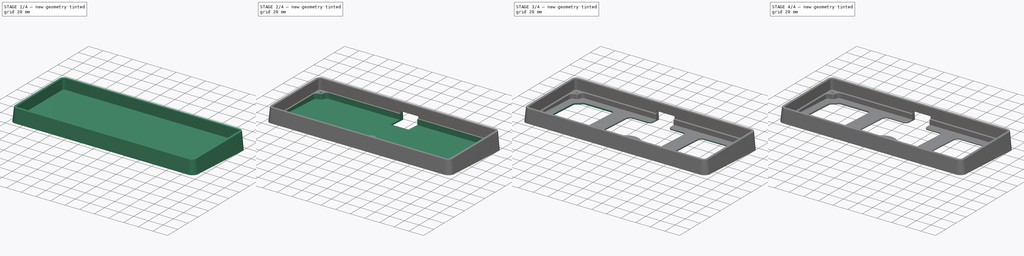
[diagram: build sequence overview — one tinted view per stage of 4, left to right]
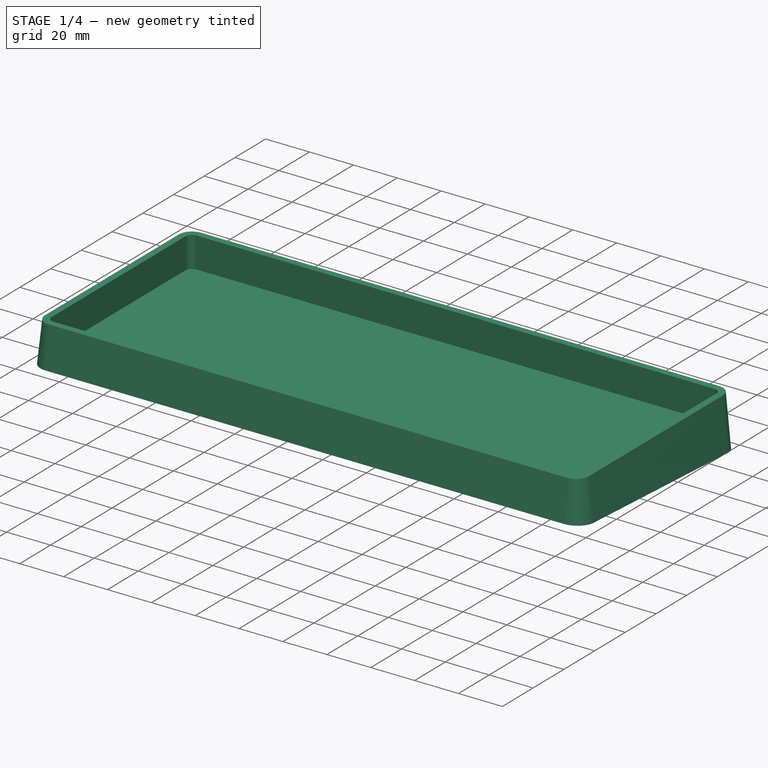
[diagram: stage 1 of 4 — iso view after this stage's code; geometry added in this stage tinted green]
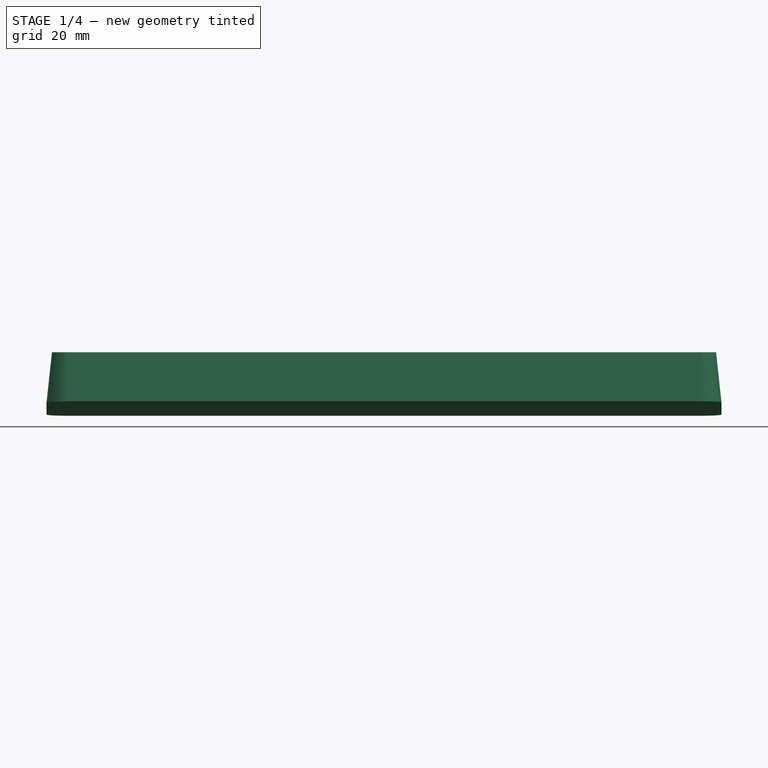
[diagram: stage 1 of 4 — front view after this stage's code; geometry added in this stage tinted green]
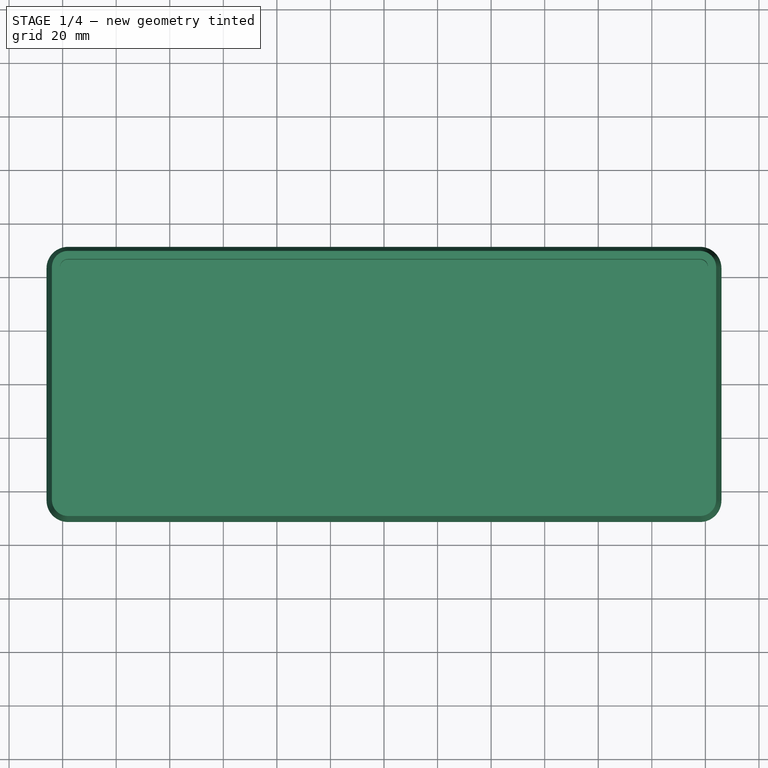
[diagram: stage 1 of 4 — top view after this stage's code; geometry added in this stage tinted green]
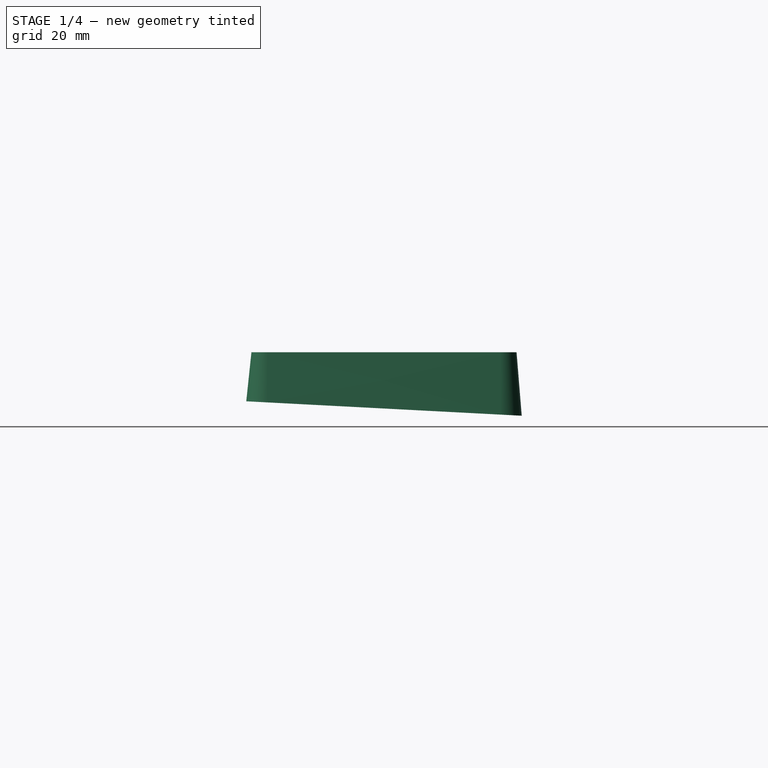
[diagram: stage 1 of 4 — right view after this stage's code; geometry added in this stage tinted green]
FCSTD DOCUMENT  (FreeCAD 0.20R)
Label: case
License: All rights reserved
LicenseURL: http://en.wikipedia.org/wiki/All_rights_reserved
objects: Sketcher::SketchObject×7, PartDesign::Pocket×4, PartDesign::Fillet×3, PartDesign::AdditiveLoft×1, PartDesign::Hole×1, PartDesign::Chamfer×1, PartDesign::Body×1
note: 28 computed .brp shape members not serialized (recipe doc carries the construction recipe); baked Part::Feature solids carry a one-line shape summary decoded from their .brp

FEATURE [Sketcher::SketchObject] Sketch
  AttachmentOffset = pos=(0,0,0) rot=(1,0,0;-0.05236rad)
  FullyConstrained = false
  MapMode = 5
  Placement = pos=(0,0,0) rot=(1,0,0;6.23083rad)
  Support = -> [XY_Plane]
  sketch-geometry (8):
    g0: LineSegment StartX=-126 StartY=43.5 StartZ=0 EndX=-126 EndY=-43.5 EndZ=0
    g1: ArcOfCircle CenterX=-118 CenterY=-43.5 CenterZ=0 NormalX=0 NormalY=0 NormalZ=1 AngleXU=0 Radius=8 StartAngle=3.14159 EndAngle=4.71239
    g2: LineSegment StartX=118 StartY=-51.5 StartZ=0 EndX=-118 EndY=-51.5 EndZ=0
    g3: ArcOfCircle CenterX=118 CenterY=-43.5 CenterZ=0 NormalX=0 NormalY=0 NormalZ=1 AngleXU=0 Radius=8 StartAngle=4.71239 EndAngle=6.28319
    g4: LineSegment StartX=126 StartY=43.5 StartZ=0 EndX=126 EndY=-43.5 EndZ=0
    g5: ArcOfCircle CenterX=118 CenterY=43.5 CenterZ=0 NormalX=0 NormalY=0 NormalZ=1 AngleXU=0 Radius=8 StartAngle=0 EndAngle=1.5708
    g6: LineSegment StartX=118 StartY=51.5 StartZ=0 EndX=-118 EndY=51.5 EndZ=0
    g7: ArcOfCircle CenterX=-118 CenterY=43.5 CenterZ=0 NormalX=0 NormalY=0 NormalZ=1 AngleXU=0 Radius=8 StartAngle=1.5708 EndAngle=3.14159
  constraints (8):
    c: Coincident(g0,g1)
    c: Coincident(g0,g7)
    c: Coincident(g1,g2)
    c: Coincident(g6,g7)
    c: Coincident(g2,g3)
    c: Coincident(g5,g6)
    c: Coincident(g3,g4)
    c: Coincident(g4,g5)
FEATURE [Sketcher::SketchObject] Sketch001
  AttachmentOffset = pos=(0,0,21) rot=(1,0,0;0rad)
  FullyConstrained = false
  MapMode = 5
  Placement = pos=(0,0,21) rot=(0,0,1;0rad)
  Support = -> [XY_Plane]
  sketch-geometry (8):
    g0: LineSegment StartX=118 StartY=49.5 StartZ=0 EndX=-118 EndY=49.5 EndZ=0
    g1: ArcOfCircle CenterX=-118 CenterY=43.5 CenterZ=0 NormalX=0 NormalY=0 NormalZ=1 AngleXU=0 Radius=6 StartAngle=1.5708 EndAngle=3.14159
    g2: LineSegment StartX=-124 StartY=43.5 StartZ=0 EndX=-124 EndY=-43.5 EndZ=0
    g3: ArcOfCircle CenterX=118 CenterY=43.5 CenterZ=0 NormalX=0 NormalY=0 NormalZ=1 AngleXU=0 Radius=6 StartAngle=0 EndAngle=1.5708
    g4: LineSegment StartX=124 StartY=43.5 StartZ=0 EndX=124 EndY=-43.5 EndZ=0
    g5: LineSegment StartX=118 StartY=-49.5 StartZ=0 EndX=-118 EndY=-49.5 EndZ=0
    g6: ArcOfCircle CenterX=118 CenterY=-43.5 CenterZ=0 NormalX=0 NormalY=0 NormalZ=1 AngleXU=0 Radius=6 StartAngle=4.71239 EndAngle=6.28319
    g7: ArcOfCircle CenterX=-118 CenterY=-43.5 CenterZ=0 NormalX=0 NormalY=0 NormalZ=1 AngleXU=0 Radius=6 StartAngle=3.14159 EndAngle=4.71239
  constraints (8):
    c: Coincident(g2,g7)
    c: Coincident(g1,g2)
    c: Coincident(g5,g7)
    c: Coincident(g0,g1)
    c: Coincident(g5,g6)
    c: Coincident(g0,g3)
    c: Coincident(g4,g6)
    c: Coincident(g3,g4)
FEATURE [PartDesign::AdditiveLoft] AdditiveLoft
  Closed = true
  Profile = -> Sketch
  Ruled = true
  Sections = -> [Sketch001]
FEATURE [Sketcher::SketchObject] Sketch002
  FullyConstrained = false
  MapMode = 5
  Placement = pos=(0,0,21) rot=(0,0,1;0rad)
  Support = -> [AdditiveLoft]
  sketch-geometry (8):
    g0: LineSegment StartX=118 StartY=46.5 StartZ=0 EndX=-118 EndY=46.5 EndZ=0
    g1: ArcOfCircle CenterX=118 CenterY=43.5 CenterZ=0 NormalX=0 NormalY=0 NormalZ=1 AngleXU=0 Radius=3 StartAngle=0 EndAngle=1.5708
    g2: LineSegment StartX=121 StartY=43.5 StartZ=0 EndX=121 EndY=-43.5 EndZ=0
    g3: ArcOfCircle CenterX=118 CenterY=-43.5 CenterZ=0 NormalX=0 NormalY=0 NormalZ=1 AngleXU=0 Radius=3 StartAngle=4.71239 EndAngle=6.28319
    g4: LineSegment StartX=118 StartY=-46.5 StartZ=0 EndX=-118 EndY=-46.5 EndZ=0
    g5: ArcOfCircle CenterX=-118 CenterY=-43.5 CenterZ=0 NormalX=0 NormalY=0 NormalZ=1 AngleXU=0 Radius=3 StartAngle=3.14159 EndAngle=4.71239
    g6: LineSegment StartX=-121 StartY=43.5 StartZ=0 EndX=-121 EndY=-43.5 EndZ=0
    g7: ArcOfCircle CenterX=-118 CenterY=43.5 CenterZ=0 NormalX=0 NormalY=0 NormalZ=1 AngleXU=0 Radius=3 StartAngle=1.5708 EndAngle=3.14159
  constraints (8):
    c: Coincident(g5,g6)
    c: Coincident(g6,g7)
    c: Coincident(g4,g5)
    c: Coincident(g0,g7)
    c: Coincident(g3,g4)
    c: Coincident(g0,g1)
    c: Coincident(g2,g3)
    c: Coincident(g1,g2)
FEATURE [PartDesign::Pocket] Pocket
  BaseFeature = -> AdditiveLoft
  Direction = (0,0,-1)
  Length = 14
  Length2 = 5
  Profile = -> Sketch002
  ReferenceAxis = -> Sketch002 [N_Axis]
  Type = 0
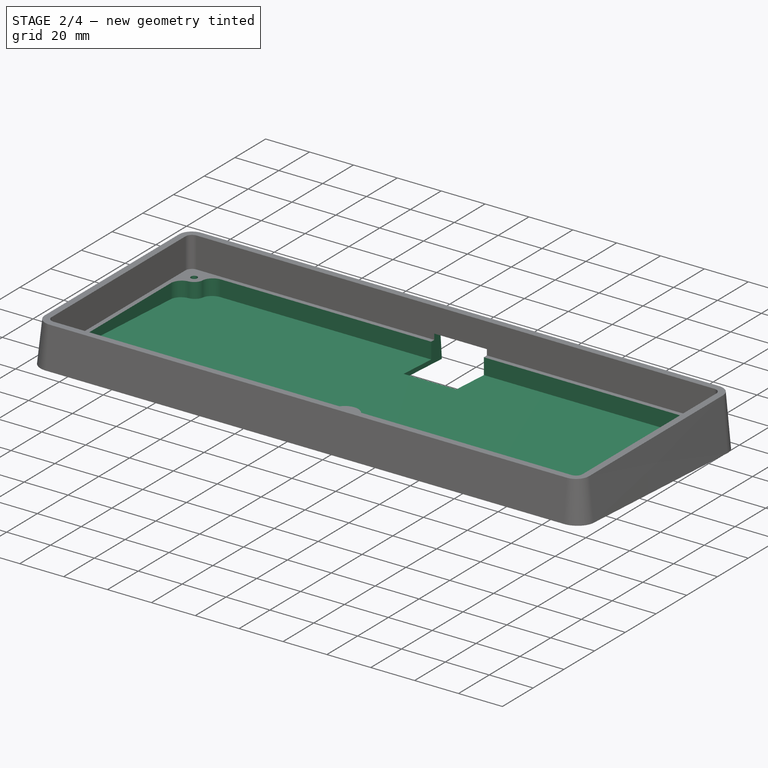
[diagram: stage 2 of 4 — iso view after this stage's code; geometry added in this stage tinted green]
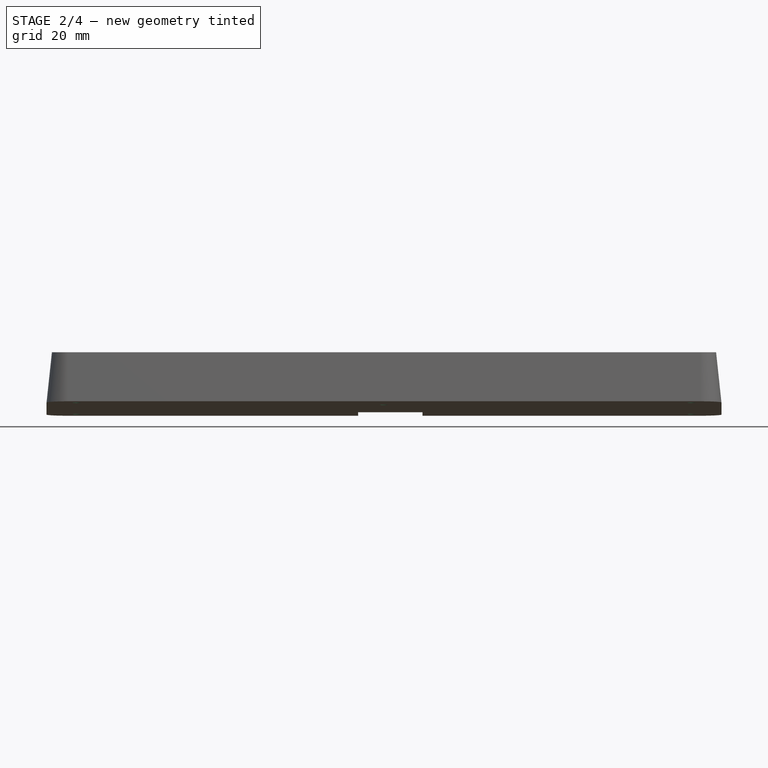
[diagram: stage 2 of 4 — front view after this stage's code; geometry added in this stage tinted green]
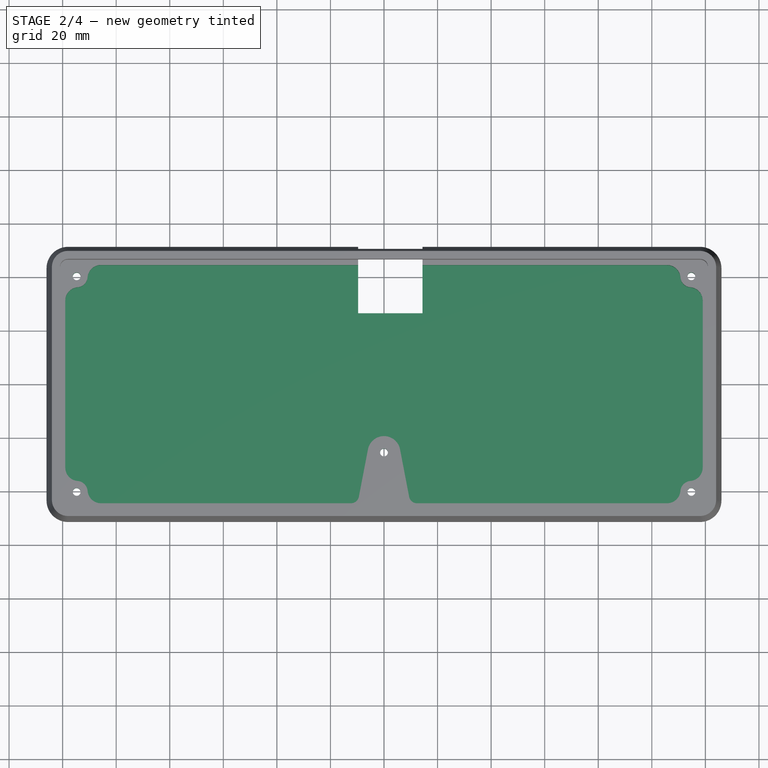
[diagram: stage 2 of 4 — top view after this stage's code; geometry added in this stage tinted green]
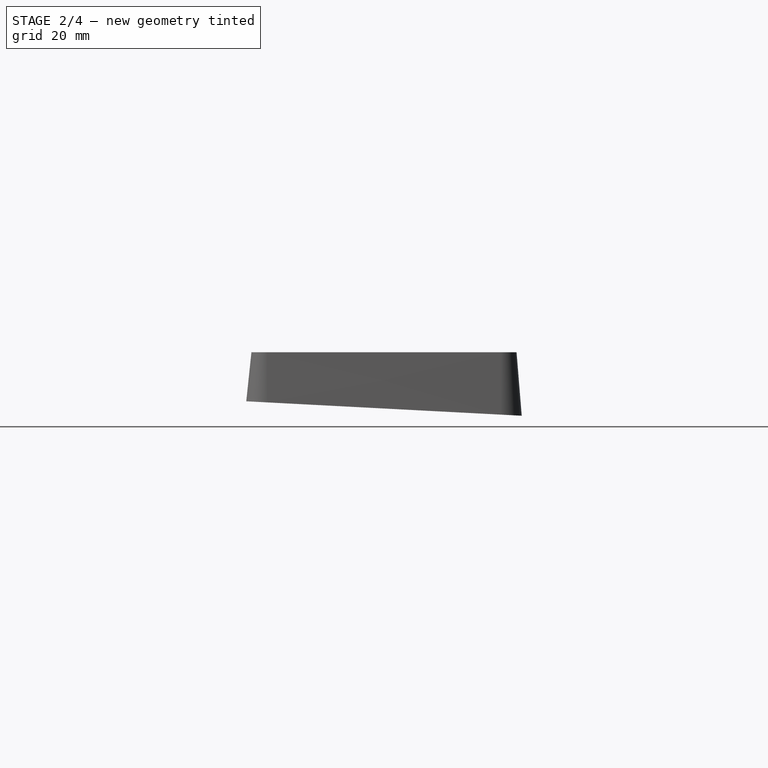
[diagram: stage 2 of 4 — right view after this stage's code; geometry added in this stage tinted green]
FEATURE [Sketcher::SketchObject] Sketch003
  FullyConstrained = false
  MapMode = 5
  Placement = pos=(0,0,7) rot=(0,0,1;0rad)
  Support = -> [Pocket]
  sketch-geometry (22):
    g0: LineSegment StartX=-5.99058 StartY=-24.3653 StartZ=0 EndX=-9.38905 EndY=-42.0657 EndZ=0
    g1: ArcOfCircle CenterX=-12.3352 CenterY=-41.5 CenterZ=0 NormalX=0 NormalY=0 NormalZ=1 AngleXU=0 Radius=3 StartAngle=4.71239 EndAngle=6.09349
    g2: LineSegment StartX=5.99058 StartY=-24.3653 StartZ=0 EndX=9.38905 EndY=-42.0657 EndZ=0
    g3: ArcOfCircle CenterX=12.3352 CenterY=-41.5 CenterZ=0 NormalX=0 NormalY=0 NormalZ=1 AngleXU=0 Radius=3 StartAngle=3.33128 EndAngle=4.71239
    g4: ArcOfCircle CenterX=0 CenterY=-25.5155 CenterZ=0 NormalX=0 NormalY=0 NormalZ=1 AngleXU=0 Radius=6.1 StartAngle=0.189691 EndAngle=2.9519
    g5: ArcOfCircle CenterX=105.689 CenterY=39.5 CenterZ=0 NormalX=0 NormalY=0 NormalZ=1 AngleXU=0 Radius=5 StartAngle=0.0833227 EndAngle=1.5708
    g6: ArcOfCircle CenterX=-105.689 CenterY=39.5 CenterZ=0 NormalX=0 NormalY=0 NormalZ=1 AngleXU=0 Radius=5 StartAngle=1.5708 EndAngle=3.05827
    g7: LineSegment StartX=105.689 StartY=44.5 StartZ=0 EndX=-105.689 EndY=44.5 EndZ=0
    g8: ArcOfCircle CenterX=114 CenterY=31.1889 CenterZ=0 NormalX=0 NormalY=0 NormalZ=1 AngleXU=0 Radius=5 StartAngle=0 EndAngle=1.48747
    g9: ArcOfCircle CenterX=114 CenterY=-31.1889 CenterZ=0 NormalX=0 NormalY=0 NormalZ=1 AngleXU=0 Radius=5 StartAngle=4.79571 EndAngle=6.28319
    g10: ArcOfCircle CenterX=105.689 CenterY=-39.5 CenterZ=0 NormalX=0 NormalY=0 NormalZ=1 AngleXU=0 Radius=5 StartAngle=4.71239 EndAngle=6.19986
    g11: ArcOfCircle CenterX=-105.689 CenterY=-39.5 CenterZ=0 NormalX=0 NormalY=0 NormalZ=1 AngleXU=0 Radius=5 StartAngle=3.22492 EndAngle=4.71239
    g12: ArcOfCircle CenterX=-114 CenterY=31.1889 CenterZ=0 NormalX=0 NormalY=0 NormalZ=1 AngleXU=0 Radius=5 StartAngle=1.65412 EndAngle=3.14159
    g13: ArcOfCircle CenterX=-114 CenterY=-31.1889 CenterZ=0 NormalX=0 NormalY=0 NormalZ=1 AngleXU=0 Radius=5 StartAngle=3.14159 EndAngle=4.62907
    g14: LineSegment StartX=-105.689 StartY=-44.5 StartZ=0 EndX=-12.3352 EndY=-44.5 EndZ=0
    g15: LineSegment StartX=12.3352 StartY=-44.5 StartZ=0 EndX=105.689 EndY=-44.5 EndZ=0
    g16: ArcOfCircle CenterX=114.757 CenterY=-40.2574 CenterZ=0 NormalX=0 NormalY=0 NormalZ=1 AngleXU=0 Radius=4.1 StartAngle=1.65412 EndAngle=3.05827
    g17: ArcOfCircle CenterX=114.757 CenterY=40.2574 CenterZ=0 NormalX=0 NormalY=0 NormalZ=1 AngleXU=0 Radius=4.1 StartAngle=3.22492 EndAngle=4.62907
    g18: ArcOfCircle CenterX=-114.757 CenterY=40.2574 CenterZ=0 NormalX=0 NormalY=0 NormalZ=1 AngleXU=0 Radius=4.1 StartAngle=4.79571 EndAngle=6.19986
    g19: ArcOfCircle CenterX=-114.757 CenterY=-40.2574 CenterZ=0 NormalX=0 NormalY=0 NormalZ=1 AngleXU=0 Radius=4.1 StartAngle=0.0833227 EndAngle=1.48747
    g20: LineSegment StartX=-119 StartY=31.1889 StartZ=0 EndX=-119 EndY=-31.1889 EndZ=0
    g21: LineSegment StartX=119 StartY=31.1889 StartZ=0 EndX=119 EndY=-31.1889 EndZ=0
  constraints (22):
    c: Coincident(g13,g20)
    c: Coincident(g12,g20)
    c: Coincident(g13,g19)
    c: Coincident(g12,g18)
    c: Coincident(g11,g19)
    c: Coincident(g6,g18)
    c: Coincident(g11,g14)
    c: Coincident(g6,g7)
    c: Coincident(g1,g14)
    c: Coincident(g0,g1)
    c: Coincident(g0,g4)
    c: Coincident(g2,g4)
    c: Coincident(g2,g3)
    c: Coincident(g3,g15)
    c: Coincident(g10,g15)
    c: Coincident(g5,g7)
    c: Coincident(g10,g16)
    c: Coincident(g5,g17)
    c: Coincident(g9,g16)
    c: Coincident(g8,g17)
    c: Coincident(g9,g21)
    c: Coincident(g8,g21)
FEATURE [PartDesign::Pocket] Pocket001
  BaseFeature = -> Pocket
  Direction = (0,0,-1)
  Length = 0
  Length2 = 5
  Offset = -2
  Profile = -> Sketch003
  ReferenceAxis = -> Sketch003 [N_Axis]
  Type = 3
  UpToFace = -> Pocket [Face1]
FEATURE [Sketcher::SketchObject] Sketch004
  FullyConstrained = false
  MapMode = 5
  Placement = pos=(0,0,7) rot=(0,0,1;0rad)
  Support = -> [Pocket]
  sketch-geometry (5):
    g0: Circle CenterX=0 CenterY=-25.5155 CenterZ=0 NormalX=0 NormalY=0 NormalZ=-1 AngleXU=0 Radius=1.1
    g1: Circle CenterX=114.757 CenterY=40.2574 CenterZ=0 NormalX=0 NormalY=0 NormalZ=-1 AngleXU=0 Radius=1.1
    g2: Circle CenterX=114.757 CenterY=-40.2574 CenterZ=0 NormalX=0 NormalY=0 NormalZ=-1 AngleXU=0 Radius=1.1
    g3: Circle CenterX=-114.757 CenterY=40.2574 CenterZ=0 NormalX=0 NormalY=0 NormalZ=-1 AngleXU=0 Radius=1.1
    g4: Circle CenterX=-114.757 CenterY=-40.2574 CenterZ=0 NormalX=0 NormalY=0 NormalZ=-1 AngleXU=0 Radius=1.1
FEATURE [PartDesign::Hole] Hole
  BaseFeature = -> Pocket001
  CustomThreadClearance = 0
  Depth = 25
  DepthType = 0
  Diameter = 2.9
  DrillForDepth = false
  DrillPoint = 1
  DrillPointAngle = 118
  HoleCutCountersinkAngle = 90
  HoleCutCustomValues = false
  HoleCutDepth = 0
  HoleCutDiameter = 6.1
  HoleCutType = 0
  ModelThread = false
  Profile = -> Sketch004
  Tapered = false
  TaperedAngle = 90
  ThreadClass = 0
  ThreadDepth = 25
  ThreadDepthType = 0
  ThreadDirection = 0
  ThreadFit = 0
  ThreadSize = 8
  ThreadType = 1
  Threaded = false
  UseCustomThreadClearance = false
FEATURE [Sketcher::SketchObject] Sketch005
  FullyConstrained = false
  MapMode = 5
  Placement = pos=(0,0,0) rot=(1,0,0;3.08923rad)
  Support = -> [Hole]
  sketch-geometry (4):
    g0: LineSegment StartX=14.3573 StartY=-57.5 StartZ=0 EndX=14.3573 EndY=-26.5 EndZ=0
    g1: LineSegment StartX=-9.6427 StartY=-26.5 StartZ=0 EndX=14.3573 EndY=-26.5 EndZ=0
    g2: LineSegment StartX=-9.6427 StartY=-57.5 StartZ=0 EndX=-9.6427 EndY=-26.5 EndZ=0
    g3: LineSegment StartX=14.3573 StartY=-57.5 StartZ=0 EndX=-9.6427 EndY=-57.5 EndZ=0
FEATURE [PartDesign::Pocket] Pocket002
  BaseFeature = -> Hole
  Direction = (0,0.052336,0.99863)
  Length = 12
  Length2 = 5
  Profile = -> Sketch005
  ReferenceAxis = -> Sketch005 [N_Axis]
  Type = 0
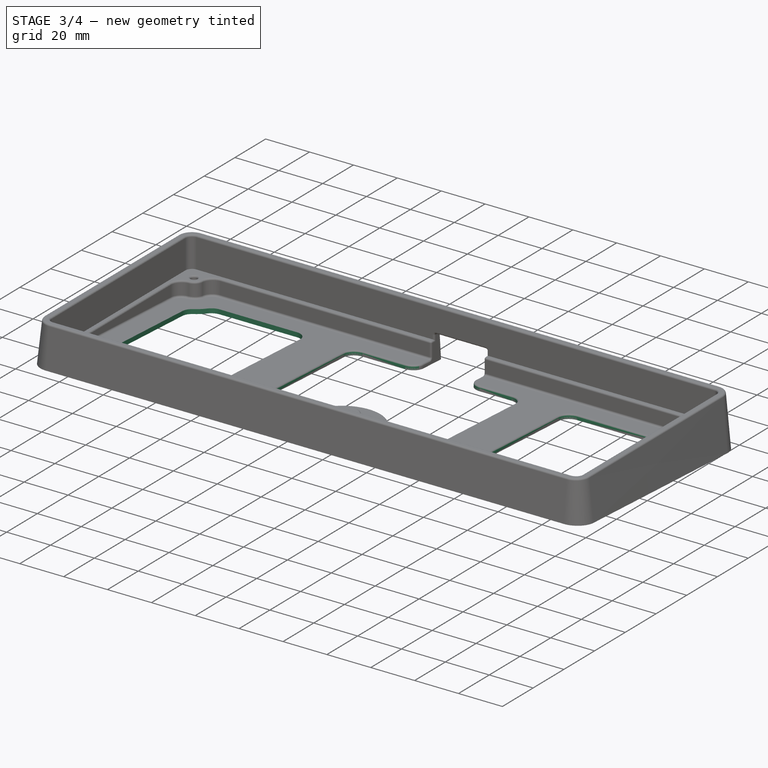
[diagram: stage 3 of 4 — iso view after this stage's code; geometry added in this stage tinted green]
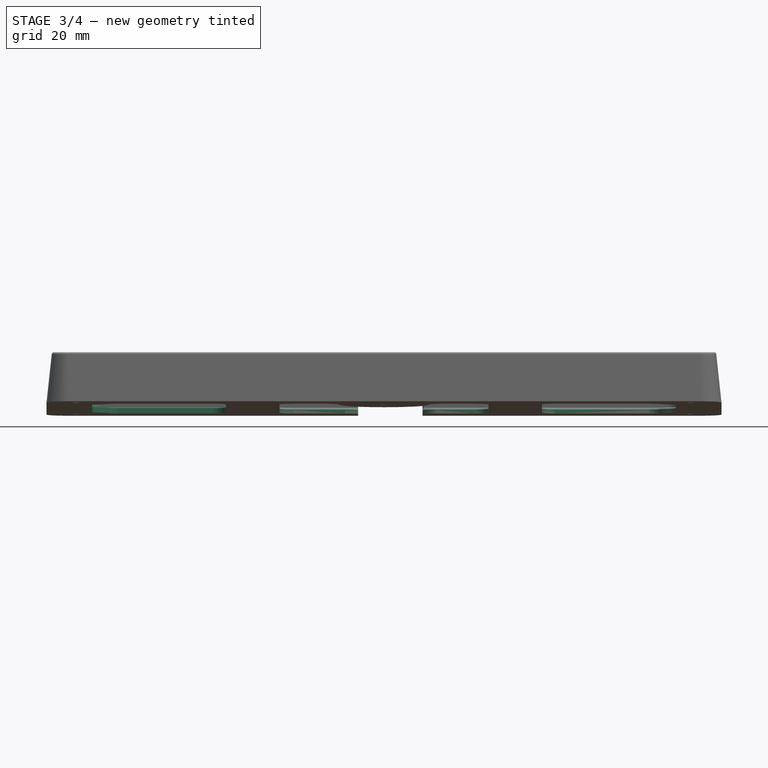
[diagram: stage 3 of 4 — front view after this stage's code; geometry added in this stage tinted green]
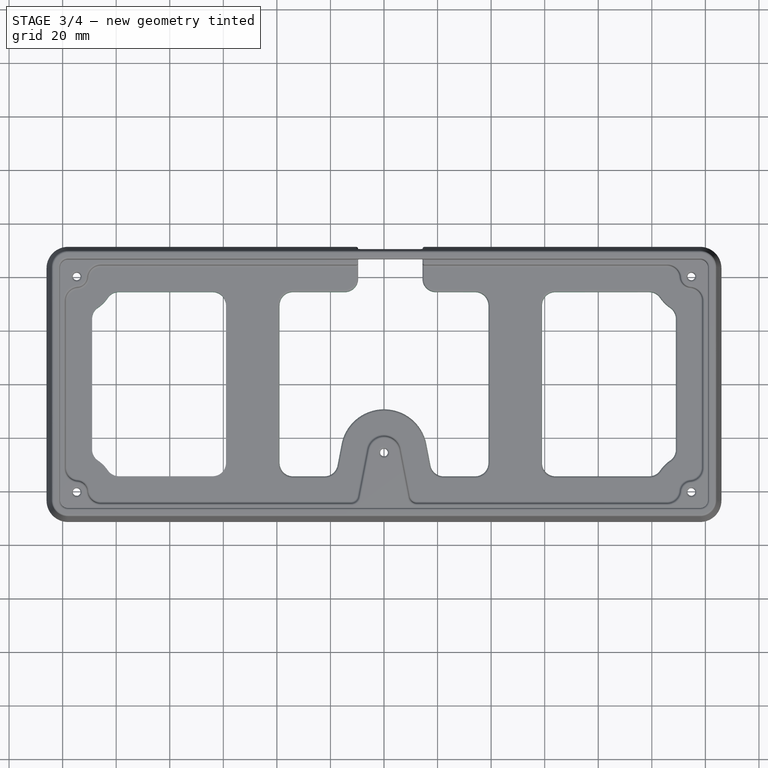
[diagram: stage 3 of 4 — top view after this stage's code; geometry added in this stage tinted green]
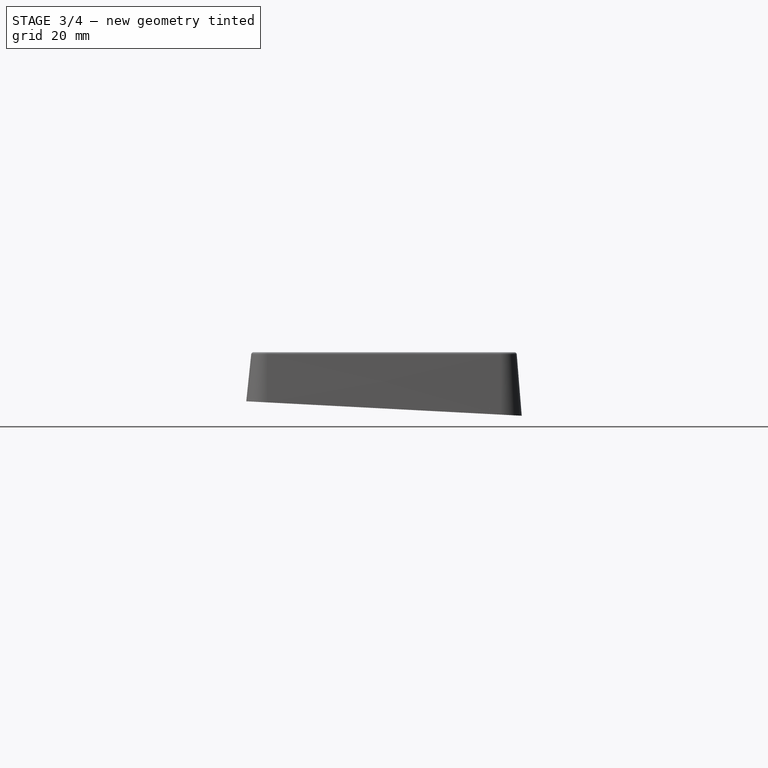
[diagram: stage 3 of 4 — right view after this stage's code; geometry added in this stage tinted green]
FEATURE [Sketcher::SketchObject] Sketch006
  FullyConstrained = false
  MapMode = 5
  Placement = pos=(0,0.104528,1.99452) rot=(-1,0,0;0.05236rad)
  Support = -> [Pocket001]
  sketch-geometry (38):
    g0: ArcOfCircle CenterX=0 CenterY=-25.5155 CenterZ=0 NormalX=0 NormalY=0 NormalZ=1 AngleXU=0 Radius=16.1 StartAngle=0.189691 EndAngle=2.9519
    g1: ArcOfCircle CenterX=34 CenterY=29.5 CenterZ=0 NormalX=0 NormalY=0 NormalZ=1 AngleXU=0 Radius=5 StartAngle=0 EndAngle=1.5708
    g2: LineSegment StartX=39 StartY=29.5 StartZ=0 EndX=39 EndY=-29.5 EndZ=0
    g3: ArcOfCircle CenterX=34 CenterY=-29.5 CenterZ=0 NormalX=0 NormalY=0 NormalZ=1 AngleXU=0 Radius=5 StartAngle=4.71239 EndAngle=6.28319
    g4: LineSegment StartX=22.2504 StartY=-34.5 StartZ=0 EndX=34 EndY=-34.5 EndZ=0
    g5: LineSegment StartX=15.8112 StartY=-22.4797 StartZ=0 EndX=17.3401 EndY=-30.4428 EndZ=0
    g6: ArcOfCircle CenterX=22.2504 CenterY=-29.5 CenterZ=0 NormalX=0 NormalY=0 NormalZ=1 AngleXU=0 Radius=5 StartAngle=3.33128 EndAngle=4.71239
    g7: ArcOfCircle CenterX=64 CenterY=-29.5 CenterZ=0 NormalX=0 NormalY=0 NormalZ=1 AngleXU=0 Radius=5 StartAngle=3.14159 EndAngle=4.71239
    g8: LineSegment StartX=59 StartY=29.5 StartZ=0 EndX=59 EndY=-29.5 EndZ=0
    g9: ArcOfCircle CenterX=64 CenterY=29.5 CenterZ=0 NormalX=0 NormalY=0 NormalZ=1 AngleXU=0 Radius=5 StartAngle=1.5708 EndAngle=3.14159
    g10: LineSegment StartX=98.9748 StartY=34.5 StartZ=0 EndX=64 EndY=34.5 EndZ=0
    g11: ArcOfCircle CenterX=98.9748 CenterY=29.5 CenterZ=0 NormalX=0 NormalY=0 NormalZ=1 AngleXU=0 Radius=5 StartAngle=0.598268 EndAngle=1.5708
    g12: ArcOfCircle CenterX=114.757 CenterY=40.2574 CenterZ=0 NormalX=0 NormalY=0 NormalZ=1 AngleXU=0 Radius=14.1 StartAngle=3.73986 EndAngle=4.11412
    g13: ArcOfCircle CenterX=104 CenterY=24.4748 CenterZ=0 NormalX=0 NormalY=0 NormalZ=1 AngleXU=0 Radius=5 StartAngle=0 EndAngle=0.972528
    g14: LineSegment StartX=109 StartY=24.4748 StartZ=0 EndX=109 EndY=-24.4748 EndZ=0
    g15: ArcOfCircle CenterX=104 CenterY=-24.4748 CenterZ=0 NormalX=0 NormalY=0 NormalZ=1 AngleXU=0 Radius=5 StartAngle=5.31066 EndAngle=6.28319
    g16: ArcOfCircle CenterX=114.757 CenterY=-40.2574 CenterZ=0 NormalX=0 NormalY=0 NormalZ=1 AngleXU=0 Radius=14.1 StartAngle=2.16906 EndAngle=2.54332
    g17: LineSegment StartX=64 StartY=-34.5 StartZ=0 EndX=98.9748 EndY=-34.5 EndZ=0
    g18: ArcOfCircle CenterX=98.9748 CenterY=-29.5 CenterZ=0 NormalX=0 NormalY=0 NormalZ=1 AngleXU=0 Radius=5 StartAngle=4.71239 EndAngle=5.68492
    g19: ArcOfCircle CenterX=-34 CenterY=-29.5 CenterZ=0 NormalX=0 NormalY=0 NormalZ=1 AngleXU=0 Radius=5 StartAngle=3.14159 EndAngle=4.71239
    g20: LineSegment StartX=-15.8112 StartY=-22.4797 StartZ=0 EndX=-17.3401 EndY=-30.4428 EndZ=0
    g21: LineSegment StartX=-34 StartY=-34.5 StartZ=0 EndX=-22.2504 EndY=-34.5 EndZ=0
    g22: ArcOfCircle CenterX=-22.2504 CenterY=-29.5 CenterZ=0 NormalX=0 NormalY=0 NormalZ=1 AngleXU=0 Radius=5 StartAngle=4.71239 EndAngle=6.09349
    g23: LineSegment StartX=34 StartY=34.5 StartZ=0 EndX=-34 EndY=34.5 EndZ=0
    g24: LineSegment StartX=-39 StartY=29.5 StartZ=0 EndX=-39 EndY=-29.5 EndZ=0
    g25: ArcOfCircle CenterX=-34 CenterY=29.5 CenterZ=0 NormalX=0 NormalY=0 NormalZ=1 AngleXU=0 Radius=5 StartAngle=1.5708 EndAngle=3.14159
    g26: ArcOfCircle CenterX=-98.9748 CenterY=29.5 CenterZ=0 NormalX=0 NormalY=0 NormalZ=1 AngleXU=0 Radius=5 StartAngle=1.5708 EndAngle=2.54332
    g27: LineSegment StartX=-64 StartY=34.5 StartZ=0 EndX=-98.9748 EndY=34.5 EndZ=0
    g28: ArcOfCircle CenterX=-64 CenterY=29.5 CenterZ=0 NormalX=0 NormalY=0 NormalZ=1 AngleXU=0 Radius=5 StartAngle=0 EndAngle=1.5708
    g29: LineSegment StartX=-59 StartY=29.5 StartZ=0 EndX=-59 EndY=-29.5 EndZ=0
    g30: ArcOfCircle CenterX=-64 CenterY=-29.5 CenterZ=0 NormalX=0 NormalY=0 NormalZ=1 AngleXU=0 Radius=5 StartAngle=4.71239 EndAngle=6.28319
    g31: LineSegment StartX=-98.9748 StartY=-34.5 StartZ=0 EndX=-64 EndY=-34.5 EndZ=0
    g32: ArcOfCircle CenterX=-98.9748 CenterY=-29.5 CenterZ=0 NormalX=0 NormalY=0 NormalZ=1 AngleXU=0 Radius=5 StartAngle=3.73986 EndAngle=4.71239
    g33: ArcOfCircle CenterX=-114.757 CenterY=-40.2574 CenterZ=0 NormalX=0 NormalY=0 NormalZ=1 AngleXU=0 Radius=14.1 StartAngle=0.598268 EndAngle=0.972528
    g34: ArcOfCircle CenterX=-104 CenterY=-24.4748 CenterZ=0 NormalX=0 NormalY=0 NormalZ=1 AngleXU=0 Radius=5 StartAngle=3.14159 EndAngle=4.11412
    g35: ArcOfCircle CenterX=-114.757 CenterY=40.2574 CenterZ=0 NormalX=0 NormalY=0 NormalZ=1 AngleXU=0 Radius=14.1 StartAngle=5.31066 EndAngle=5.68492
    g36: LineSegment StartX=-109 StartY=24.4748 StartZ=0 EndX=-109 EndY=-24.4748 EndZ=0
    g37: ArcOfCircle CenterX=-104 CenterY=24.4748 CenterZ=0 NormalX=0 NormalY=0 NormalZ=1 AngleXU=0 Radius=5 StartAngle=2.16906 EndAngle=3.14159
  constraints (38):
    c: Coincident(g34,g36)
    c: Coincident(g36,g37)
    c: Coincident(g33,g34)
    c: Coincident(g35,g37)
    c: Coincident(g32,g33)
    c: Coincident(g26,g35)
    c: Coincident(g31,g32)
    c: Coincident(g26,g27)
    c: Coincident(g30,g31)
    c: Coincident(g27,g28)
    c: Coincident(g29,g30)
    c: Coincident(g28,g29)
    c: Coincident(g19,g24)
    c: Coincident(g24,g25)
    c: Coincident(g19,g21)
    c: Coincident(g23,g25)
    c: Coincident(g21,g22)
    c: Coincident(g20,g22)
    c: Coincident(g0,g20)
    c: Coincident(g0,g5)
    c: Coincident(g5,g6)
    c: Coincident(g4,g6)
    c: Coincident(g3,g4)
    c: Coincident(g1,g23)
    c: Coincident(g2,g3)
    c: Coincident(g1,g2)
    c: Coincident(g7,g8)
    c: Coincident(g8,g9)
    c: Coincident(g7,g17)
    c: Coincident(g9,g10)
    c: Coincident(g17,g18)
    c: Coincident(g10,g11)
    c: Coincident(g16,g18)
    c: Coincident(g11,g12)
    c: Coincident(g15,g16)
    c: Coincident(g12,g13)
    c: Coincident(g14,g15)
    c: Coincident(g13,g14)
FEATURE [PartDesign::Pocket] Pocket003
  BaseFeature = -> Pocket002
  Direction = (0,-0.052336,-0.99863)
  Length = 5
  Length2 = 5
  Profile = -> Sketch006
  ReferenceAxis = -> Sketch006 [N_Axis]
  Type = 1
FEATURE [PartDesign::Fillet] Fillet
  Base = -> Pocket003 [Edge97,Edge62]
  BaseFeature = -> Pocket003
  Radius = 5
  SupportTransform = false
  UseAllEdges = false
FEATURE [PartDesign::Fillet] Fillet001
  Base = -> Fillet [Edge204,Edge64,Edge63,Edge61,Edge203,Face59,Edge108,Edge107,Edge62,Edge106,Edge59,Edge71,Edge115,Edge153,Edge179,Edge127,Edge125,Edge123,Face63,Edge180,Edge149,Edge151]
  BaseFeature = -> Fillet
  Radius = 0.8
  SupportTransform = false
  UseAllEdges = false
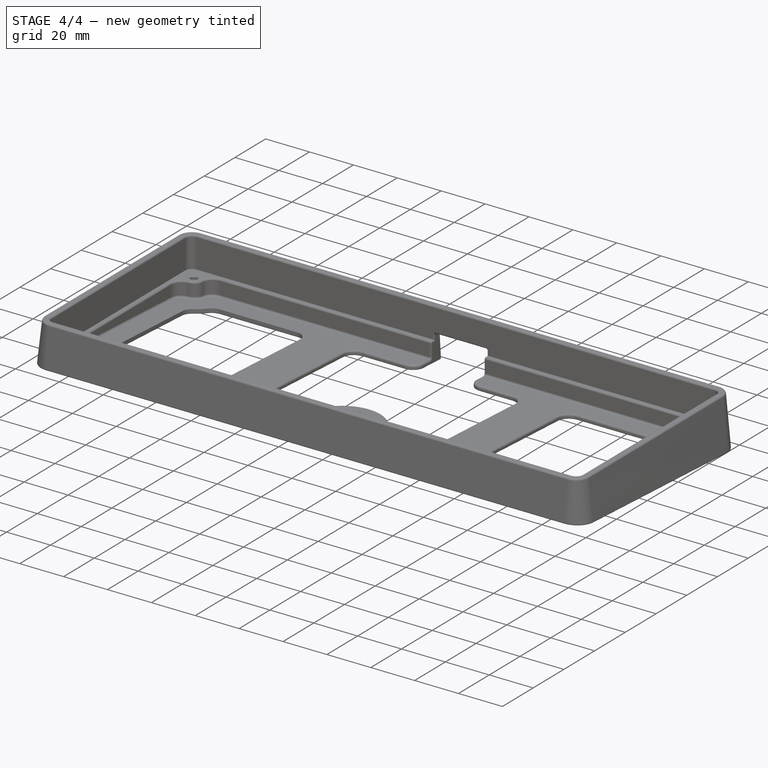
[diagram: stage 4 of 4 — iso view after this stage's code; geometry added in this stage tinted green]
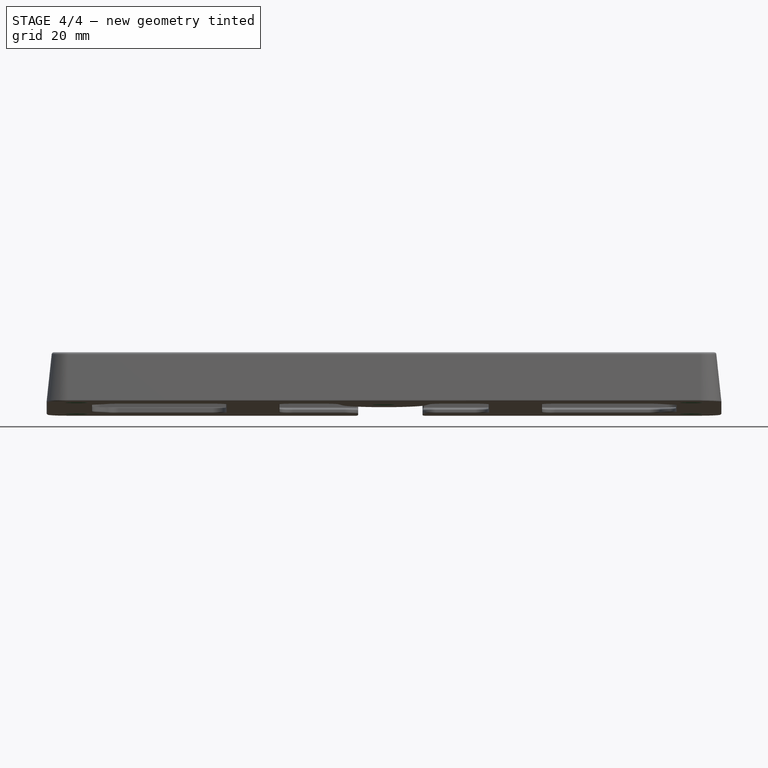
[diagram: stage 4 of 4 — front view after this stage's code; geometry added in this stage tinted green]
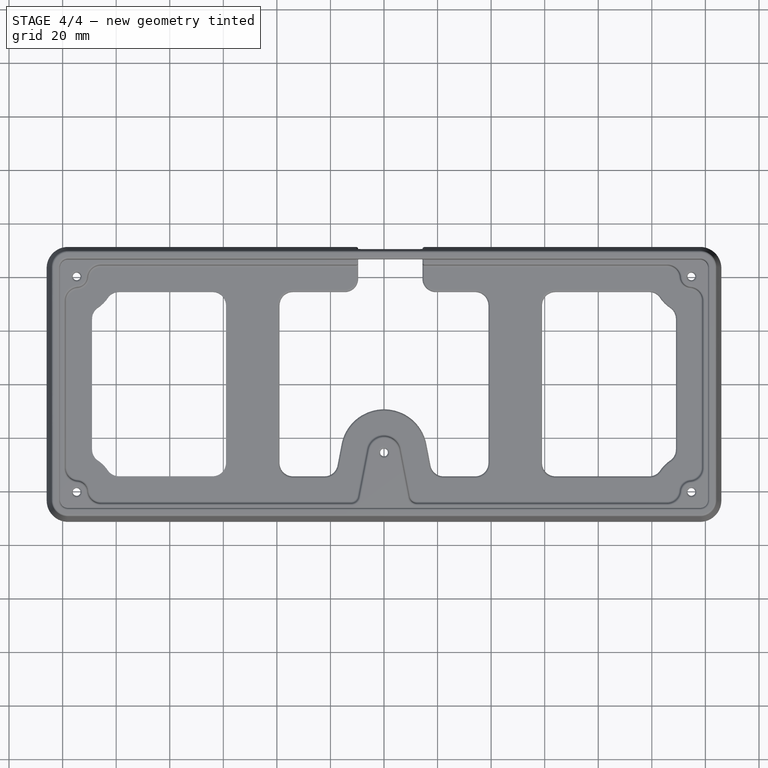
[diagram: stage 4 of 4 — top view after this stage's code; geometry added in this stage tinted green]
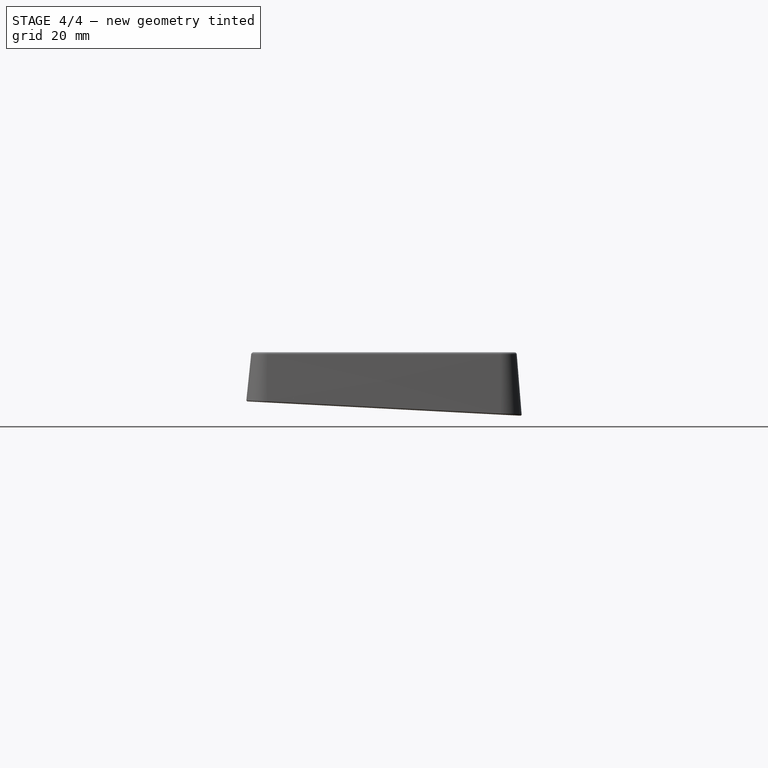
[diagram: stage 4 of 4 — right view after this stage's code; geometry added in this stage tinted green]
FEATURE [PartDesign::Chamfer] Chamfer
  Angle = 45
  Base = -> Fillet001 [Edge46,Edge59,Edge45,Edge31,Edge44]
  BaseFeature = -> Fillet001
  ChamferType = 0
  FlipDirection = false
  Size = 3
  Size2 = 1
  SupportTransform = false
  UseAllEdges = false
FEATURE [PartDesign::Fillet] Fillet002
  Base = -> Chamfer [Face1]
  BaseFeature = -> Chamfer
  Radius = 0.5
  SupportTransform = false
  UseAllEdges = false
FEATURE [PartDesign::Body] Body
  Group = -> [Sketch,Sketch001,AdditiveLoft,Sketch002,Pocket,Sketch003,Pocket001,Sketch004,Hole,Sketch005,Pocket002,Sketch006,Pocket003,Fillet,Fillet001,Chamfer,Fillet002]
  Origin = -> Origin
  Tip = -> Fillet002
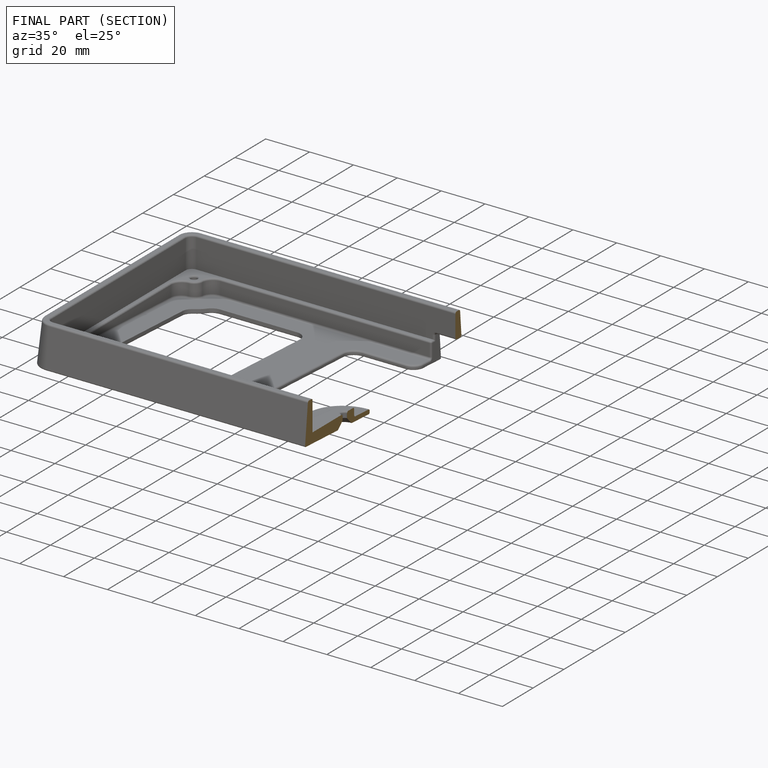
[diagram: finished part — half-section view (interior)]
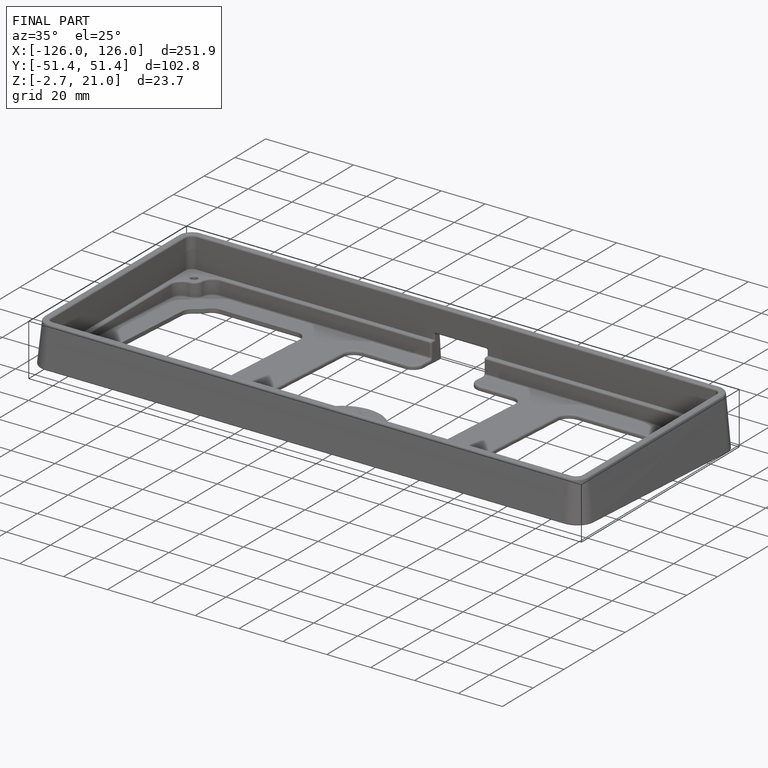
[diagram: finished part — iso view with bounding-box wireframe]
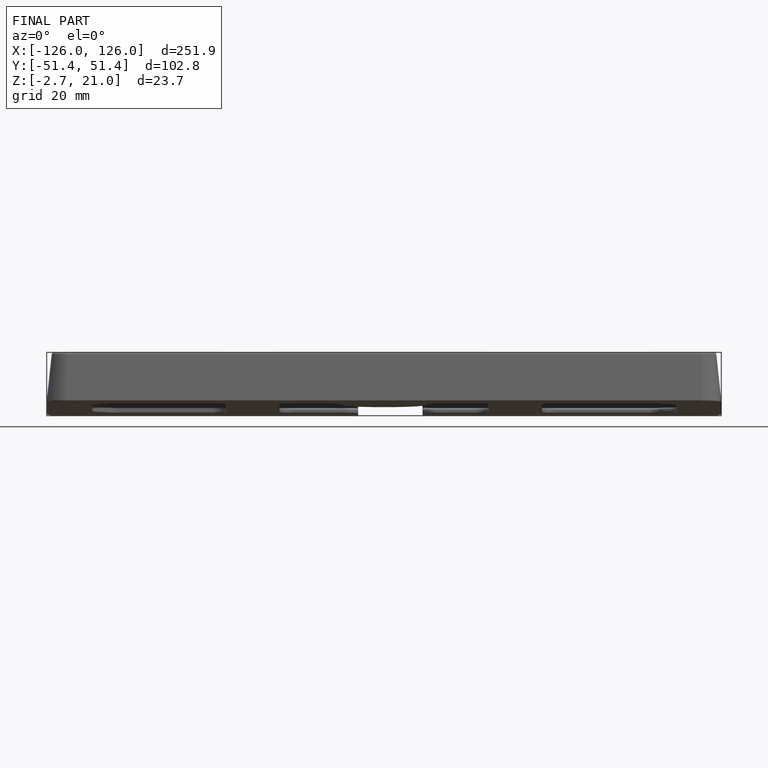
[diagram: finished part — front view with bounding-box wireframe]
